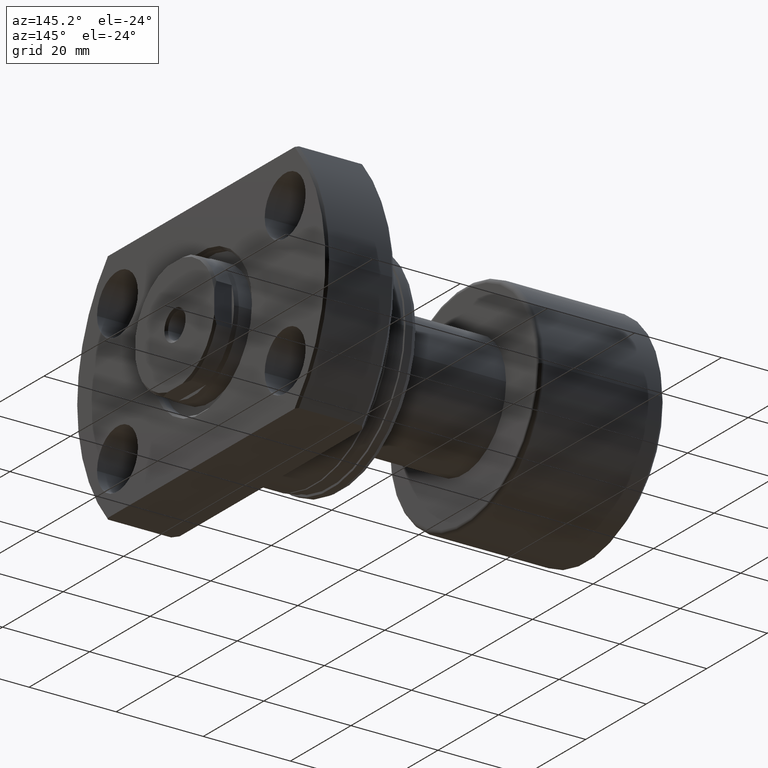
[diagram: clean part render]
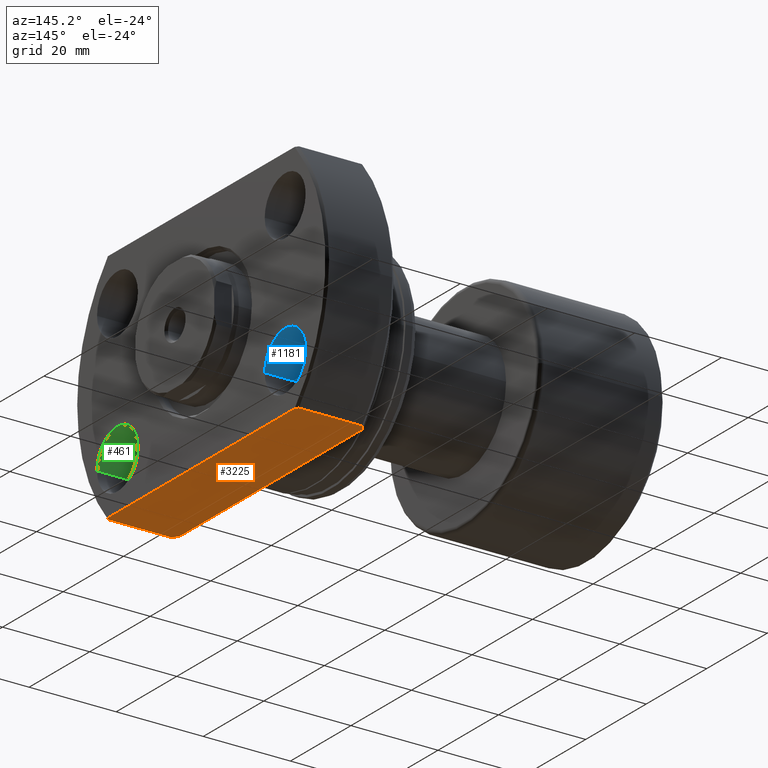
[diagram: same view with three faces highlighted in distinct colors, each labeled with its STEP entity id]
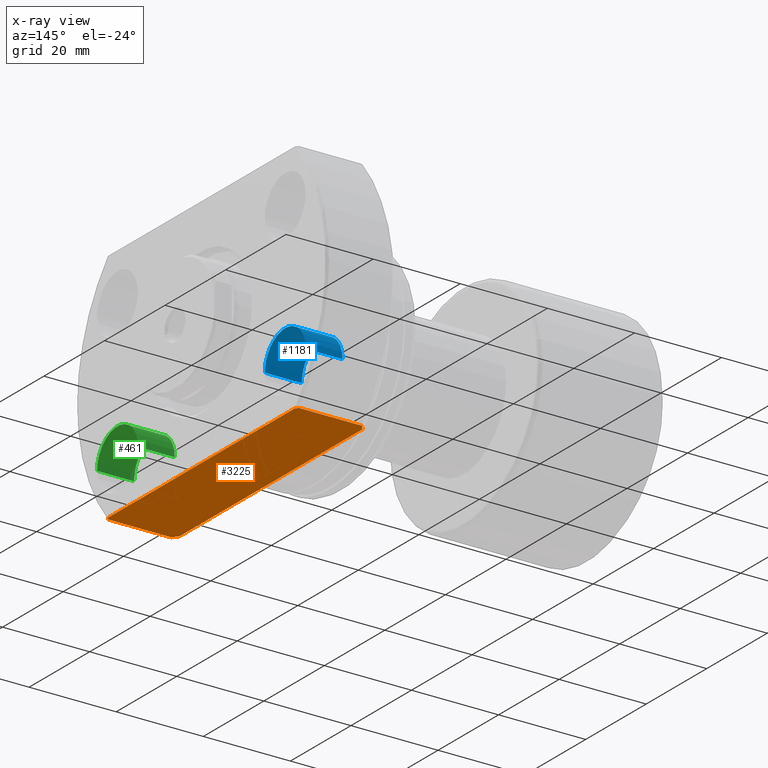
[diagram: x-ray of the same camera — body ghosted, the three highlighted faces saturated]
A machine part, auxiliary view with three faces highlighted in distinct colors.
The next image is the same camera in x-ray (body ghosted, the three faces saturated) — at least one of them is partly hidden behind the body in this view.
Their STEP definitions:

[orange] entity #3225 — the highlighted planar face has unit normal (0, 0, 1).
#30 = CARTESIAN_POINT ( 'NONE',  ( 32.20000000000000284, -41.00000000000000000, -27.00000000000001066 ) ) ;
#75 = VERTEX_POINT ( 'NONE', #198 ) ;
#80 = ORIENTED_EDGE ( 'NONE', *, *, #1456, .F. ) ;
#173 = EDGE_CURVE ( 'NONE', #430, #1168, #1808, .T. ) ;
#190 = CARTESIAN_POINT ( 'NONE',  ( 31.86714501216202677, -31.29577297747868769, -27.00000000000001066 ) ) ;
#198 = CARTESIAN_POINT ( 'NONE',  ( 16.20000000000000284, 30.18691769624705046, -27.00000000000001066 ) ) ;
#253 = DIRECTION ( 'NONE',  ( -2.928503215352364811E-17, 1.000000000000000000, -0.000000000000000000 ) ) ;
#278 = ORIENTED_EDGE ( 'NONE', *, *, #2533, .F. ) ;
#315 = ORIENTED_EDGE ( 'NONE', *, *, #2853, .F. ) ;
#410 = CARTESIAN_POINT ( 'NONE',  ( 17.19999999999998508, -31.51586901863833035, -27.00000000000001066 ) ) ;
#430 = VERTEX_POINT ( 'NONE', #2145 ) ;
#500 = B_SPLINE_CURVE_WITH_KNOTS ( 'NONE', 3,
 ( #2424, #190, #1195, #2179 ),
 .UNSPECIFIED., .F., .F.,
 ( 4, 4 ),
 ( 0.05015760524658367803, 0.05098774144837257133 ),
 .UNSPECIFIED. ) ;
#522 = LINE ( 'NONE', #30, #1619 ) ;
#556 = CARTESIAN_POINT ( 'NONE',  ( 31.70000000000006679, 31.51586901863874601, -27.00000000000000711 ) ) ;
#564 = AXIS2_PLACEMENT_3D ( 'NONE', #2634, #1137, #1449 ) ;
#668 = CARTESIAN_POINT ( 'NONE',  ( 16.86471127380553625, 31.07436184874788765, -27.00000000000001066 ) ) ;
#678 = EDGE_CURVE ( 'NONE', #3066, #1944, #522, .T. ) ;
#680 = EDGE_CURVE ( 'NONE', #75, #3007, #1000, .T. ) ;
#692 = VERTEX_POINT ( 'NONE', #2995 ) ;
#809 = VECTOR ( 'NONE', #2078, 1000.000000000000000 ) ;
#837 = ORIENTED_EDGE ( 'NONE', *, *, #1936, .F. ) ;
#917 = ORIENTED_EDGE ( 'NONE', *, *, #1235, .T. ) ;
#965 = CARTESIAN_POINT ( 'NONE',  ( 17.19999999999998508, 31.51586901863916168, -27.00000000000000711 ) ) ;
#975 = CARTESIAN_POINT ( 'NONE',  ( 32.03379534306750998, 31.07535291994848237, -27.00000000000001066 ) ) ;
#978 = CARTESIAN_POINT ( 'NONE',  ( 32.20000000000000284, 30.85449724108302405, -27.00000000000001066 ) ) ;
#983 = CARTESIAN_POINT ( 'NONE',  ( 16.53131604462041437, 30.63142481493160929, -27.00000000000001066 ) ) ;
#1000 = LINE ( 'NONE', #1992, #2773 ) ;
#1023 = CARTESIAN_POINT ( 'NONE',  ( 31.86712147602016643, 31.29580396979836365, -27.00000000000001066 ) ) ;
#1137 = DIRECTION ( 'NONE',  ( 0.000000000000000000, 0.000000000000000000, 1.000000000000000000 ) ) ;
#1168 = VERTEX_POINT ( 'NONE', #2763 ) ;
#1170 = FACE_OUTER_BOUND ( 'NONE', #2658, .T. ) ;
#1195 = CARTESIAN_POINT ( 'NONE',  ( 32.03381911391471704, -31.07532133282755638, -27.00000000000001066 ) ) ;
#1204 = CARTESIAN_POINT ( 'NONE',  ( 16.53141418566413279, -30.63155648495868988, -27.00000000000001066 ) ) ;
#1216 = VECTOR ( 'NONE', #2816, 1000.000000000000000 ) ;
#1235 = EDGE_CURVE ( 'NONE', #2574, #692, #2308, .T. ) ;
#1449 = DIRECTION ( 'NONE',  ( 1.000000000000000000, 0.000000000000000000, -0.000000000000000000 ) ) ;
#1456 = EDGE_CURVE ( 'NONE', #2574, #75, #2650, .T. ) ;
#1466 = CARTESIAN_POINT ( 'NONE',  ( 16.20000000000000639, -30.18691769624705046, -27.00000000000001066 ) ) ;
#1619 = VECTOR ( 'NONE', #253, 1000.000000000000000 ) ;
#1633 = B_SPLINE_CURVE_WITH_KNOTS ( 'NONE', 3,
 ( #1956, #1204, #1684, #410 ),
 .UNSPECIFIED., .F., .F.,
 ( 4, 4 ),
 ( 0.1192530742752442169, 0.1209245665045658030 ),
 .UNSPECIFIED. ) ;
#1663 = CARTESIAN_POINT ( 'NONE',  ( 16.20000000000000284, 30.18691769624705046, -27.00000000000001066 ) ) ;
#1684 = CARTESIAN_POINT ( 'NONE',  ( 16.86480748815608521, -31.07448854351060774, -27.00000000000001066 ) ) ;
#1808 = LINE ( 'NONE', #2782, #1216 ) ;
#1868 = CARTESIAN_POINT ( 'NONE',  ( 17.19999999999998508, 31.51586901863916168, -27.00000000000000711 ) ) ;
#1936 = EDGE_CURVE ( 'NONE', #3007, #430, #1633, .T. ) ;
#1944 = VERTEX_POINT ( 'NONE', #978 ) ;
#1956 = CARTESIAN_POINT ( 'NONE',  ( 16.20000000000000639, -30.18691769624705046, -27.00000000000001066 ) ) ;
#1992 = CARTESIAN_POINT ( 'NONE',  ( 16.19999999999999929, -24.99999999999999645, -27.00000000000001066 ) ) ;
#2032 = CARTESIAN_POINT ( 'NONE',  ( 32.20000000000000284, 30.85449724108302405, -27.00000000000001066 ) ) ;
#2078 = DIRECTION ( 'NONE',  ( 1.000000000000000000, -2.886466111666351885E-14, -0.000000000000000000 ) ) ;
#2145 = CARTESIAN_POINT ( 'NONE',  ( 17.19999999999998508, -31.51586901863833035, -27.00000000000001066 ) ) ;
#2147 = ORIENTED_EDGE ( 'NONE', *, *, #680, .F. ) ;
#2179 = CARTESIAN_POINT ( 'NONE',  ( 32.20000000000000284, -30.85449724108301695, -27.00000000000001066 ) ) ;
#2274 = ORIENTED_EDGE ( 'NONE', *, *, #173, .F. ) ;
#2308 = LINE ( 'NONE', #3095, #809 ) ;
#2424 = CARTESIAN_POINT ( 'NONE',  ( 31.70000000000006679, -31.51586901863874601, -27.00000000000001066 ) ) ;
#2533 = EDGE_CURVE ( 'NONE', #1944, #692, #2639, .T. ) ;
#2574 = VERTEX_POINT ( 'NONE', #1868 ) ;
#2634 = CARTESIAN_POINT ( 'NONE',  ( -2.914335439641035919E-13, 31.51586901863966972, -27.00000000000001066 ) ) ;
#2639 = B_SPLINE_CURVE_WITH_KNOTS ( 'NONE', 3,
 ( #2032, #975, #1023, #556 ),
 .UNSPECIFIED., .F., .F.,
 ( 4, 4 ),
 ( 0.1200863353860359695, 0.1209197143792625773 ),
 .UNSPECIFIED. ) ;
#2650 = B_SPLINE_CURVE_WITH_KNOTS ( 'NONE', 3,
 ( #965, #668, #983, #1663 ),
 .UNSPECIFIED., .F., .F.,
 ( 4, 4 ),
 ( 0.05016248729573408172, 0.05182772012122720262 ),
 .UNSPECIFIED. ) ;
#2658 = EDGE_LOOP ( 'NONE', ( #917, #278, #3089, #315, #2274, #837, #2147, #80 ) ) ;
#2678 = CARTESIAN_POINT ( 'NONE',  ( 32.20000000000000284, -30.85449724108301695, -27.00000000000001066 ) ) ;
#2763 = CARTESIAN_POINT ( 'NONE',  ( 31.70000000000006679, -31.51586901863874601, -27.00000000000001066 ) ) ;
#2773 = VECTOR ( 'NONE', #2778, 1000.000000000000000 ) ;
#2778 = DIRECTION ( 'NONE',  ( 2.928503215352364811E-17, -1.000000000000000000, 0.000000000000000000 ) ) ;
#2782 = CARTESIAN_POINT ( 'NONE',  ( -2.109423746787797427E-12, -31.51586901863782941, -27.00000000000001066 ) ) ;
#2816 = DIRECTION ( 'NONE',  ( 1.000000000000000000, -2.886466111666351885E-14, -0.000000000000000000 ) ) ;
#2853 = EDGE_CURVE ( 'NONE', #1168, #3066, #500, .T. ) ;
#2884 = PLANE ( 'NONE',  #564 ) ;
#2995 = CARTESIAN_POINT ( 'NONE',  ( 31.70000000000006679, 31.51586901863874601, -27.00000000000000711 ) ) ;
#3007 = VERTEX_POINT ( 'NONE', #1466 ) ;
#3066 = VERTEX_POINT ( 'NONE', #2678 ) ;
#3089 = ORIENTED_EDGE ( 'NONE', *, *, #678, .F. ) ;
#3095 = CARTESIAN_POINT ( 'NONE',  ( -2.914335439641035919E-13, 31.51586901863966261, -27.00000000000000711 ) ) ;
#3225 = ADVANCED_FACE ( 'NONE', ( #1170 ), #2884, .F. ) ;

[blue] entity #1181 — the highlighted cylindrical surface (edge-blend (fillet) strip) has radius 6.75 mm, axis along (1, -0, 0).
#42 = ORIENTED_EDGE ( 'NONE', *, *, #2285, .T. ) ;
#85 = VECTOR ( 'NONE', #1072, 1000.000000000000000 ) ;
#117 = CARTESIAN_POINT ( 'NONE',  ( 23.70000000000060325, 20.94999999999932072, -16.00000000000000000 ) ) ;
#286 = CYLINDRICAL_SURFACE ( 'NONE', #549, 6.750000000000002665 ) ;
#309 = CARTESIAN_POINT ( 'NONE',  ( 23.70000000000099050, 34.44999999999932072, -16.00000000000000000 ) ) ;
#335 = VERTEX_POINT ( 'NONE', #1596 ) ;
#344 = VERTEX_POINT ( 'NONE', #1093 ) ;
#405 = EDGE_CURVE ( 'NONE', #2618, #335, #2081, .T. ) ;
#549 = AXIS2_PLACEMENT_3D ( 'NONE', #1289, #1022, #2014 ) ;
#552 = CIRCLE ( 'NONE', #1796, 6.750000000000002665 ) ;
#878 = DIRECTION ( 'NONE',  ( 1.000000000000000000, -2.886466111666351885E-14, -0.000000000000000000 ) ) ;
#916 = AXIS2_PLACEMENT_3D ( 'NONE', #2182, #2198, #2912 ) ;
#922 = VECTOR ( 'NONE', #878, 1000.000000000000000 ) ;
#1022 = DIRECTION ( 'NONE',  ( 1.000000000000000000, -2.886466111666351885E-14, -0.000000000000000000 ) ) ;
#1072 = DIRECTION ( 'NONE',  ( 1.000000000000000000, -2.886466111666351885E-14, -0.000000000000000000 ) ) ;
#1093 = CARTESIAN_POINT ( 'NONE',  ( 23.70000000000099050, 34.44999999999932072, -16.00000000000000000 ) ) ;
#1181 = ADVANCED_FACE ( 'NONE', ( #2971 ), #286, .F. ) ;
#1240 = EDGE_CURVE ( 'NONE', #344, #1521, #3051, .T. ) ;
#1289 = CARTESIAN_POINT ( 'NONE',  ( 23.70000000000079510, 27.69999999999931717, -16.00000000000000000 ) ) ;
#1367 = ORIENTED_EDGE ( 'NONE', *, *, #1240, .T. ) ;
#1476 = EDGE_LOOP ( 'NONE', ( #2390, #1624, #1367, #42 ) ) ;
#1521 = VERTEX_POINT ( 'NONE', #1568 ) ;
#1542 = CIRCLE ( 'NONE', #916, 6.749999999999999112 ) ;
#1568 = CARTESIAN_POINT ( 'NONE',  ( 32.20000000000099050, 34.44999999999907203, -16.00000000000000000 ) ) ;
#1596 = CARTESIAN_POINT ( 'NONE',  ( 32.20000000000059970, 20.94999999999907203, -16.00000000000000000 ) ) ;
#1624 = ORIENTED_EDGE ( 'NONE', *, *, #1798, .F. ) ;
#1796 = AXIS2_PLACEMENT_3D ( 'NONE', #2387, #2337, #1841 ) ;
#1798 = EDGE_CURVE ( 'NONE', #344, #2618, #552, .T. ) ;
#1841 = DIRECTION ( 'NONE',  ( 2.878355989768923499E-14, 1.000000000000000000, 0.000000000000000000 ) ) ;
#2014 = DIRECTION ( 'NONE',  ( 2.878355989768923499E-14, 1.000000000000000000, 0.000000000000000000 ) ) ;
#2081 = LINE ( 'NONE', #117, #922 ) ;
#2094 = CARTESIAN_POINT ( 'NONE',  ( 23.70000000000060325, 20.94999999999931717, -16.00000000000000000 ) ) ;
#2182 = CARTESIAN_POINT ( 'NONE',  ( 32.20000000000079865, 27.69999999999907203, -16.00000000000000000 ) ) ;
#2198 = DIRECTION ( 'NONE',  ( 1.000000000000000000, -2.884016039175094104E-14, 0.000000000000000000 ) ) ;
#2285 = EDGE_CURVE ( 'NONE', #1521, #335, #1542, .T. ) ;
#2337 = DIRECTION ( 'NONE',  ( 1.000000000000000000, -2.884016039175094104E-14, 0.000000000000000000 ) ) ;
#2387 = CARTESIAN_POINT ( 'NONE',  ( 23.70000000000079510, 27.69999999999931717, -16.00000000000000000 ) ) ;
#2390 = ORIENTED_EDGE ( 'NONE', *, *, #405, .F. ) ;
#2618 = VERTEX_POINT ( 'NONE', #2094 ) ;
#2912 = DIRECTION ( 'NONE',  ( 2.878355989768924761E-14, 1.000000000000000000, 0.000000000000000000 ) ) ;
#2971 = FACE_OUTER_BOUND ( 'NONE', #1476, .T. ) ;
#3051 = LINE ( 'NONE', #309, #85 ) ;

[green] entity #461 — the highlighted cylindrical surface (edge-blend (fillet) strip) has radius 6.75 mm, axis along (1, -0, 0).
#44 = CIRCLE ( 'NONE', #2961, 6.749999999999999112 ) ;
#108 = CARTESIAN_POINT ( 'NONE',  ( 23.69999999999900808, -34.45000000000068496, -16.00000000000000000 ) ) ;
#129 = CARTESIAN_POINT ( 'NONE',  ( 32.19999999999939888, -20.95000000000092655, -16.00000000000000000 ) ) ;
#158 = DIRECTION ( 'NONE',  ( 1.000000000000000000, -2.886466111666351885E-14, -0.000000000000000000 ) ) ;
#219 = CARTESIAN_POINT ( 'NONE',  ( 23.69999999999919993, -27.70000000000067786, -16.00000000000000000 ) ) ;
#370 = LINE ( 'NONE', #1057, #1336 ) ;
#388 = DIRECTION ( 'NONE',  ( 2.878355989768924761E-14, 1.000000000000000000, 0.000000000000000000 ) ) ;
#459 = AXIS2_PLACEMENT_3D ( 'NONE', #2174, #158, #2672 ) ;
#461 = ADVANCED_FACE ( 'NONE', ( #2439 ), #1381, .F. ) ;
#711 = AXIS2_PLACEMENT_3D ( 'NONE', #2878, #2627, #388 ) ;
#764 = VECTOR ( 'NONE', #2211, 1000.000000000000000 ) ;
#921 = ORIENTED_EDGE ( 'NONE', *, *, #2448, .T. ) ;
#1003 = CARTESIAN_POINT ( 'NONE',  ( 23.69999999999939533, -20.95000000000068141, -16.00000000000000000 ) ) ;
#1057 = CARTESIAN_POINT ( 'NONE',  ( 23.69999999999900808, -34.45000000000068496, -16.00000000000000000 ) ) ;
#1126 = CIRCLE ( 'NONE', #711, 6.749999999999999112 ) ;
#1178 = CARTESIAN_POINT ( 'NONE',  ( 32.19999999999900808, -34.45000000000092655, -16.00000000000000000 ) ) ;
#1298 = EDGE_CURVE ( 'NONE', #1697, #3092, #370, .T. ) ;
#1336 = VECTOR ( 'NONE', #2545, 1000.000000000000000 ) ;
#1381 = CYLINDRICAL_SURFACE ( 'NONE', #459, 6.749999999999999112 ) ;
#1392 = ORIENTED_EDGE ( 'NONE', *, *, #2921, .F. ) ;
#1417 = VERTEX_POINT ( 'NONE', #1646 ) ;
#1481 = DIRECTION ( 'NONE',  ( 2.878355989768924761E-14, 1.000000000000000000, 0.000000000000000000 ) ) ;
#1646 = CARTESIAN_POINT ( 'NONE',  ( 23.69999999999939533, -20.95000000000068141, -16.00000000000000000 ) ) ;
#1697 = VERTEX_POINT ( 'NONE', #108 ) ;
#1735 = LINE ( 'NONE', #1003, #764 ) ;
#1858 = ORIENTED_EDGE ( 'NONE', *, *, #2244, .T. ) ;
#1954 = EDGE_LOOP ( 'NONE', ( #2507, #1392, #921, #1858 ) ) ;
#2009 = DIRECTION ( 'NONE',  ( 1.000000000000000000, -2.884016039175094104E-14, 0.000000000000000000 ) ) ;
#2174 = CARTESIAN_POINT ( 'NONE',  ( 23.69999999999919993, -27.70000000000067786, -16.00000000000000000 ) ) ;
#2211 = DIRECTION ( 'NONE',  ( 1.000000000000000000, -2.886466111666351885E-14, -0.000000000000000000 ) ) ;
#2244 = EDGE_CURVE ( 'NONE', #2717, #3092, #1126, .T. ) ;
#2439 = FACE_OUTER_BOUND ( 'NONE', #1954, .T. ) ;
#2448 = EDGE_CURVE ( 'NONE', #1417, #2717, #1735, .T. ) ;
#2507 = ORIENTED_EDGE ( 'NONE', *, *, #1298, .F. ) ;
#2545 = DIRECTION ( 'NONE',  ( 1.000000000000000000, -2.886466111666351885E-14, -0.000000000000000000 ) ) ;
#2627 = DIRECTION ( 'NONE',  ( 1.000000000000000000, -2.884016039175094104E-14, 0.000000000000000000 ) ) ;
#2672 = DIRECTION ( 'NONE',  ( 2.878355989768924761E-14, 1.000000000000000000, 0.000000000000000000 ) ) ;
#2717 = VERTEX_POINT ( 'NONE', #129 ) ;
#2878 = CARTESIAN_POINT ( 'NONE',  ( 32.19999999999919993, -27.70000000000092655, -16.00000000000000000 ) ) ;
#2921 = EDGE_CURVE ( 'NONE', #1417, #1697, #44, .T. ) ;
#2961 = AXIS2_PLACEMENT_3D ( 'NONE', #219, #2009, #1481 ) ;
#3092 = VERTEX_POINT ( 'NONE', #1178 ) ;